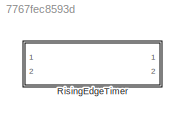
MODEL slx_7767fec8593d
KIND library
CONFIG AbsTol = auto
CONFIG EnableMultiTasking = off
CONFIG FixedStep = auto
CONFIG MaxStep = auto
CONFIG MinStep = auto
CONFIG RelTol = 1e-3
CONFIG SampleTimeConstraint = Unconstrained
CONFIG SolverName = VariableStepAuto
CONFIG StartTime = 0.0
CONFIG StopTime = 10.0
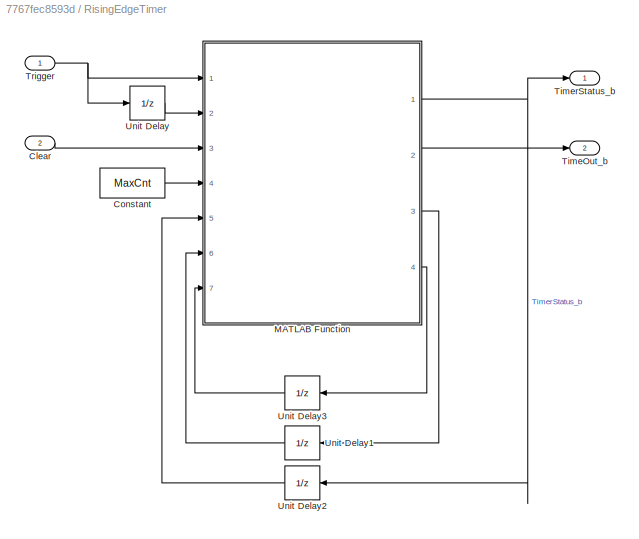
BLOCK [SubSystem] RisingEdgeTimer
  Ports = [2, 2]
  RequestExecContextInheritance = off
BLOCK [Inport] RisingEdgeTimer/Clear
  OutDataTypeStr = boolean
  Port = 2
BLOCK [Constant] RisingEdgeTimer/Constant
  OutDataTypeStr = uint16
  Value = MaxCnt
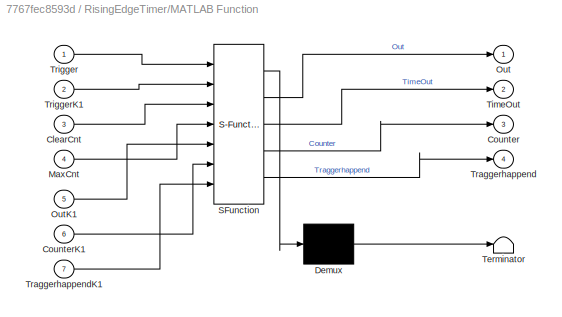
BLOCK [SubSystem] RisingEdgeTimer/MATLAB Function
  ErrorFcn = Stateflow.Translate.translate
  PermitHierarchicalResolution = ExplicitOnly
  Ports = [7, 4]
  RequestExecContextInheritance = off
  SFBlockType = MATLAB Function
  TreatAsAtomicUnit = on
BLOCK [Demux] RisingEdgeTimer/MATLAB Function/ Demux 
  Outputs = 1
  Ports = [1, 1]
BLOCK [S-Function] RisingEdgeTimer/MATLAB Function/ SFunction 
  EnableBusSupport = off
  FunctionName = sf_sfun
  PortCounts = [7 5]
  Ports = [7, 5]
  SFcnIsStateOwnerBlock = off
  SFunctionDeploymentMode = off
  Tag = Stateflow S-Function 1
BLOCK [Terminator] RisingEdgeTimer/MATLAB Function/ Terminator 
BLOCK [Inport] RisingEdgeTimer/MATLAB Function/ClearCnt
  Port = 3
BLOCK [Outport] RisingEdgeTimer/MATLAB Function/Counter
  Port = 3
BLOCK [Inport] RisingEdgeTimer/MATLAB Function/CounterK1
  Port = 6
BLOCK [Inport] RisingEdgeTimer/MATLAB Function/MaxCnt
  Port = 4
BLOCK [Outport] RisingEdgeTimer/MATLAB Function/Out
BLOCK [Inport] RisingEdgeTimer/MATLAB Function/OutK1
  Port = 5
BLOCK [Outport] RisingEdgeTimer/MATLAB Function/TimeOut
  Port = 2
BLOCK [Outport] RisingEdgeTimer/MATLAB Function/Traggerhappend
  Port = 4
BLOCK [Inport] RisingEdgeTimer/MATLAB Function/TraggerhappendK1
  Port = 7
BLOCK [Inport] RisingEdgeTimer/MATLAB Function/Trigger
BLOCK [Inport] RisingEdgeTimer/MATLAB Function/TriggerK1
  Port = 2
BLOCK [Outport] RisingEdgeTimer/TimeOut_b
  OutDataTypeStr = boolean
  Port = 2
BLOCK [Outport] RisingEdgeTimer/TimerStatus_b
  OutDataTypeStr = boolean
BLOCK [Inport] RisingEdgeTimer/Trigger
  OutDataTypeStr = boolean
BLOCK [UnitDelay] RisingEdgeTimer/Unit Delay
  HasFrameUpgradeWarning = on
  SampleTime = -1
BLOCK [UnitDelay] RisingEdgeTimer/Unit Delay1
  HasFrameUpgradeWarning = on
  SampleTime = -1
BLOCK [UnitDelay] RisingEdgeTimer/Unit Delay2
  HasFrameUpgradeWarning = on
  SampleTime = -1
BLOCK [UnitDelay] RisingEdgeTimer/Unit Delay3
  HasFrameUpgradeWarning = on
  SampleTime = -1
LINE RisingEdgeTimer/Clear:1 -> RisingEdgeTimer/MATLAB Function:3
LINE RisingEdgeTimer/Constant:1 -> RisingEdgeTimer/MATLAB Function:4
NET RisingEdgeTimer/MATLAB Function:1 -> RisingEdgeTimer/TimerStatus_b:1, RisingEdgeTimer/Unit Delay2:1
LINE RisingEdgeTimer/MATLAB Function:2 -> RisingEdgeTimer/TimeOut_b:1
LINE RisingEdgeTimer/MATLAB Function:3 -> RisingEdgeTimer/Unit Delay1:1
LINE RisingEdgeTimer/MATLAB Function:4 -> RisingEdgeTimer/Unit Delay3:1
NET RisingEdgeTimer/Trigger:1 -> RisingEdgeTimer/MATLAB Function:1, RisingEdgeTimer/Unit Delay:1
LINE RisingEdgeTimer/Unit Delay1:1 -> RisingEdgeTimer/MATLAB Function:6
LINE RisingEdgeTimer/Unit Delay2:1 -> RisingEdgeTimer/MATLAB Function:5
LINE RisingEdgeTimer/Unit Delay3:1 -> RisingEdgeTimer/MATLAB Function:7
LINE RisingEdgeTimer/Unit Delay:1 -> RisingEdgeTimer/MATLAB Function:2
note: NET lines group one-source signal fan-out (src -> all destinations, sorted); 1:1 wires keep LINE
CHART RisingEdgeTimer/MATLAB Function states=1 transitions=1
  STATE_LABEL 'eML_blk_kernel()'
  STATE_LABEL 'SCRIPT:\nfunction [Out,TimeOut,Counter,Traggerhappend] = RisingEdgeTimer(Trigger,TriggerK1, ClearCnt, MaxCnt,OutK1, CounterK1,TraggerhappendK1)\n%#codegen\nTimeOut=false;\nTraggerhappend=TraggerhappendK1;\nif MaxCnt~=0\n    if (Trigger==1)&&(TriggerK1==0)\n        Counter = MaxCnt;\n        Traggerhappend=true;\n    elseif CounterK1 > 0x0\n        Counter = CounterK1 - uint16(1);\n    else\n        Counter = ...<+477ch>'
CHART  states=0 transitions=0
